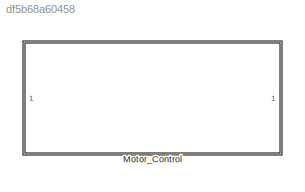
MODEL slx_df5b68a60458
KIND model
CONFIG AbsTol = auto
CONFIG EnableMultiTasking = on
CONFIG FixedStep = 0.02
CONFIG MaxStep = auto
CONFIG MinStep = auto
CONFIG RelTol = 1e-3
CONFIG SampleTimeConstraint = Unconstrained
CONFIG Solver = FixedStepAuto
CONFIG SolverName = FixedStepAuto
CONFIG StartTime = 0.0
CONFIG StopTime = 500
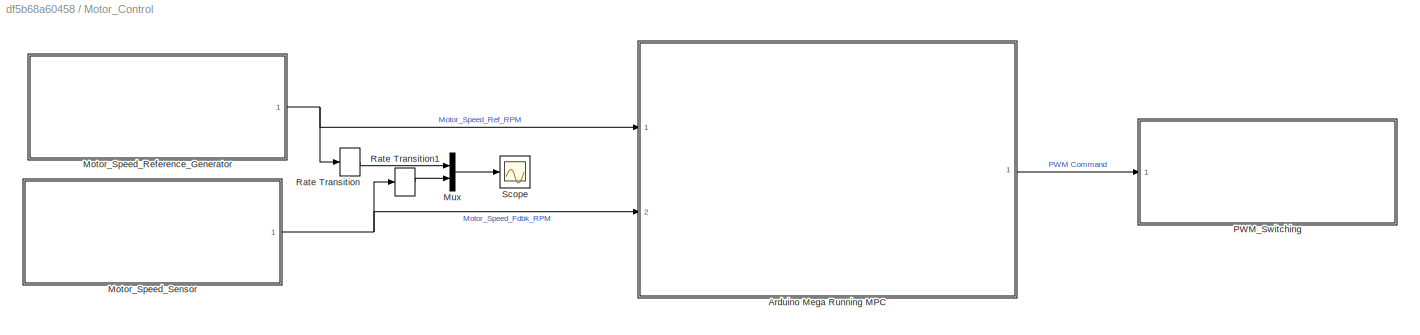
BLOCK [SubSystem] Motor_Control
  Ports = []
  RTWFcnName = Motor_Control
  RTWFcnNameOpts = User specified
  RTWFileName = motor_control_file
  RTWFileNameOpts = User specified
  RTWSystemCode = Nonreusable function
  RequestExecContextInheritance = off
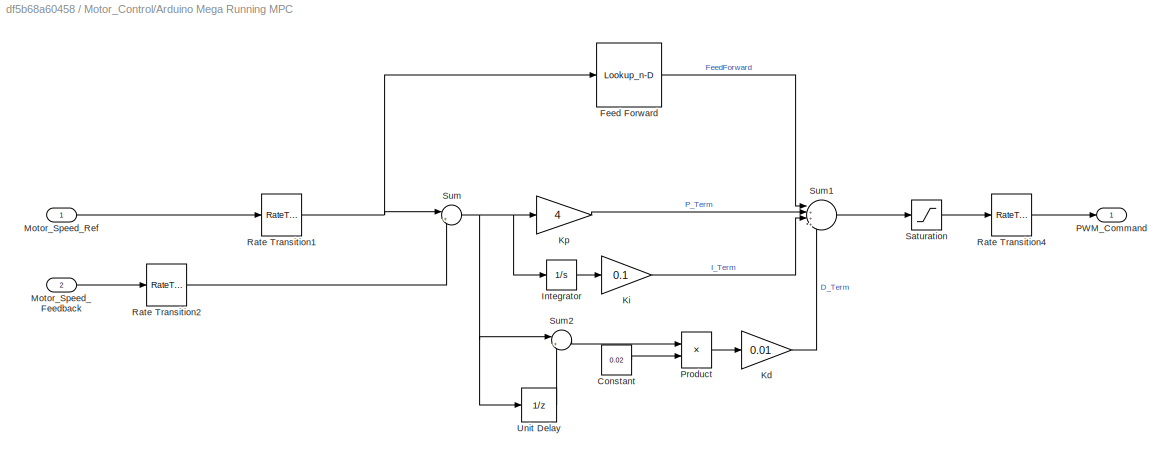
BLOCK [SubSystem] Motor_Control/Arduino Mega Running MPC
  Ports = [2, 1]
  RequestExecContextInheritance = off
BLOCK [Constant] Motor_Control/Arduino Mega Running MPC/Constant
  Value = 0.02
BLOCK [Lookup_n-D] Motor_Control/Arduino Mega Running MPC/Feed Forward
  BreakpointsForDimension1 = [57 149 225 273 303 327 338 354 360 375]
  ExtrapMethod = Clip
  InternalRulePriority = Speed
  NumberOfTableDimensions = 1
  Ports = [1, 1]
  RndMeth = Simplest
  Table = [25.5 	50.1 	76.5 	102 	127.5 	153 	178.5 	204 	229.5 	255 ]
BLOCK [Integrator] Motor_Control/Arduino Mega Running MPC/Integrator
  Ports = [1, 1]
BLOCK [Gain] Motor_Control/Arduino Mega Running MPC/Kd
  Gain = 0.01
  OutDataTypeStr = Inherit: Inherit via internal rule
  ParamDataTypeStr = Inherit: Inherit via internal rule
  SaturateOnIntegerOverflow = off
BLOCK [Gain] Motor_Control/Arduino Mega Running MPC/Ki
  Gain = 0.1
  OutDataTypeStr = Inherit: Inherit via internal rule
  ParamDataTypeStr = Inherit: Inherit via internal rule
  SaturateOnIntegerOverflow = off
BLOCK [Gain] Motor_Control/Arduino Mega Running MPC/Kp 
  Gain = 4
  OutDataTypeStr = Inherit: Inherit via internal rule
  ParamDataTypeStr = Inherit: Inherit via internal rule
  SaturateOnIntegerOverflow = off
BLOCK [Inport] Motor_Control/Arduino Mega Running MPC/Motor_Speed_Feedback
  IconDisplay = Port number
  Port = 2
BLOCK [Inport] Motor_Control/Arduino Mega Running MPC/Motor_Speed_Ref
  IconDisplay = Port number
BLOCK [Outport] Motor_Control/Arduino Mega Running MPC/PWM_Command
  IconDisplay = Port number
  VectorParamsAs1DForOutWhenUnconnected = off
BLOCK [Product] Motor_Control/Arduino Mega Running MPC/Product
  InputSameDT = off
  Inputs = */
  OutDataTypeStr = Inherit: Inherit via internal rule
  Ports = [2, 1]
  RndMeth = Floor
  SaturateOnIntegerOverflow = off
BLOCK [RateTransition] Motor_Control/Arduino Mega Running MPC/Rate Transition1
BLOCK [RateTransition] Motor_Control/Arduino Mega Running MPC/Rate Transition2
BLOCK [RateTransition] Motor_Control/Arduino Mega Running MPC/Rate Transition4
BLOCK [Saturate] Motor_Control/Arduino Mega Running MPC/Saturation
  InputPortMap = u0
  LowerLimit = 0
  Ports = [1, 1]
  UpperLimit = 255
BLOCK [Sum] Motor_Control/Arduino Mega Running MPC/Sum
  IconShape = round
  InputSameDT = off
  Inputs = |+-
  OutDataTypeStr = Inherit: Inherit via internal rule
  Ports = [2, 1]
  SaturateOnIntegerOverflow = off
BLOCK [Sum] Motor_Control/Arduino Mega Running MPC/Sum1
  IconShape = round
  InputSameDT = off
  Inputs = |++++
  OutDataTypeStr = Inherit: Inherit via internal rule
  Ports = [4, 1]
  SaturateOnIntegerOverflow = off
BLOCK [Sum] Motor_Control/Arduino Mega Running MPC/Sum2
  IconShape = round
  InputSameDT = off
  Inputs = |+-
  OutDataTypeStr = Inherit: Inherit via internal rule
  Ports = [2, 1]
  SaturateOnIntegerOverflow = off
BLOCK [UnitDelay] Motor_Control/Arduino Mega Running MPC/Unit Delay
  HasFrameUpgradeWarning = on
  SampleTime = -1
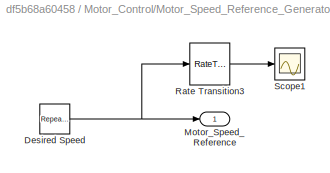
BLOCK [SubSystem] Motor_Control/Motor_Speed_Reference_Generator
  Ports = [0, 1]
  RequestExecContextInheritance = off
BLOCK [Reference] Motor_Control/Motor_Speed_Reference_Generator/Desired Speed  REF=simulink/Sources/Repeating
Sequence
Stair
  Ports = [0, 1]
  SourceBlock = simulink/Sources/Repeating\nSequence\nStair
  SourceProductBaseCode = SL
  SourceProductName = Simulink
  SourceType = Repeating Sequence Stair
BLOCK [Outport] Motor_Control/Motor_Speed_Reference_Generator/Motor_Speed_Reference
  IconDisplay = Port number
  VectorParamsAs1DForOutWhenUnconnected = off
BLOCK [RateTransition] Motor_Control/Motor_Speed_Reference_Generator/Rate Transition3
BLOCK [Scope] Motor_Control/Motor_Speed_Reference_Generator/Scope1
  Floating = off
  NumInputPorts = 1
  Ports = [1]
  ScopeSpecificationString = Simulink.scopes.TimeScopeBlockCfg('CurrentConfiguration', extmgr.ConfigurationSet(extmgr.Configuration('Core','General UI',true),extmgr.Configuration('Core','Source UI',true),extmgr.Configuration('Sources','WiredSimulink',true,'DataLoggingSaveFormat','Array','DataLoggingDecimation','1','DataLoggingDecimateData',true,'DataLogging',true,'DataLoggingVariableName','Motor_Speed_Reference','SampleTime',...<+1720ch>
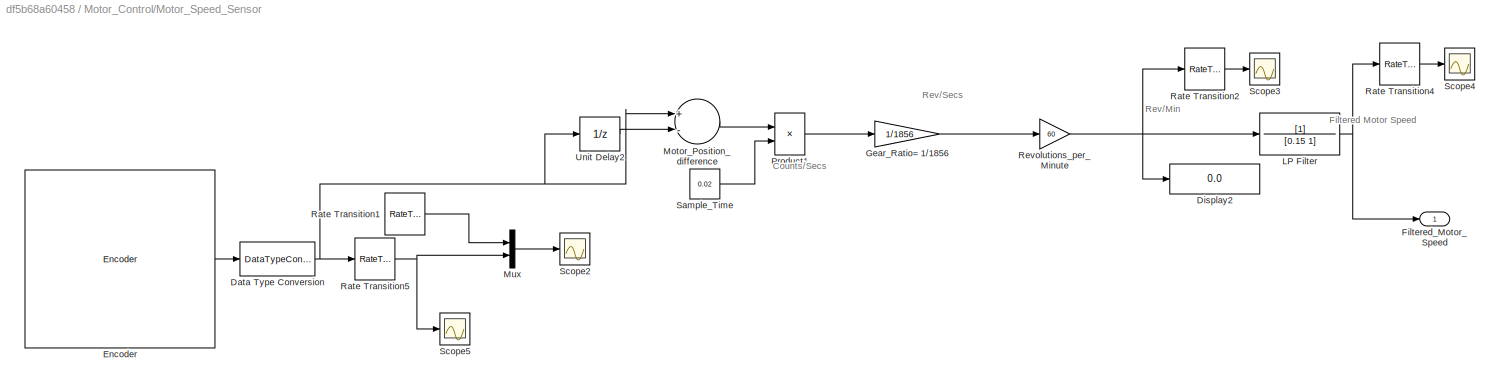
BLOCK [SubSystem] Motor_Control/Motor_Speed_Sensor
  Ports = [0, 1]
  RequestExecContextInheritance = off
BLOCK [DataTypeConversion] Motor_Control/Motor_Speed_Sensor/Data Type Conversion
  OutDataTypeStr = int16
  RndMeth = Floor
  SaturateOnIntegerOverflow = off
BLOCK [Display] Motor_Control/Motor_Speed_Sensor/Display2
  Decimation = 1
  Ports = [1]
BLOCK [Reference] Motor_Control/Motor_Speed_Sensor/Encoder  REF=RoboholicLib/Encoder
  Ports = [0, 1]
  SourceBlock = RoboholicLib/Encoder
  SourceProductName = Roboholic Maniacs Arduino Support Package
  SourceType = Encoder_Sim
BLOCK [Outport] Motor_Control/Motor_Speed_Sensor/Filtered_Motor_Speed
  IconDisplay = Port number
  VectorParamsAs1DForOutWhenUnconnected = off
BLOCK [Gain] Motor_Control/Motor_Speed_Sensor/Gear_Ratio= 1//1856
  Gain = 1/1856
  OutDataTypeStr = Inherit: Inherit via internal rule
  ParamDataTypeStr = Inherit: Inherit via internal rule
  SaturateOnIntegerOverflow = off
BLOCK [TransferFcn] Motor_Control/Motor_Speed_Sensor/LP Filter
  Denominator = [0.15 1]
BLOCK [Sum] Motor_Control/Motor_Speed_Sensor/Motor_Position_difference
  InputSameDT = off
  Inputs = +-
  OutDataTypeStr = Inherit: Inherit via internal rule
  Ports = [2, 1]
  SaturateOnIntegerOverflow = off
BLOCK [Mux] Motor_Control/Motor_Speed_Sensor/Mux
  Commented = on
  DisplayOption = bar
  Inputs = 2
  Ports = [2, 1]
BLOCK [Product] Motor_Control/Motor_Speed_Sensor/Product1
  InputSameDT = off
  Inputs = */
  OutDataTypeStr = Inherit: Inherit via internal rule
  Ports = [2, 1]
  RndMeth = Floor
  SaturateOnIntegerOverflow = off
BLOCK [RateTransition] Motor_Control/Motor_Speed_Sensor/Rate Transition1
  Commented = on
BLOCK [RateTransition] Motor_Control/Motor_Speed_Sensor/Rate Transition2
BLOCK [RateTransition] Motor_Control/Motor_Speed_Sensor/Rate Transition4
BLOCK [RateTransition] Motor_Control/Motor_Speed_Sensor/Rate Transition5
  Commented = on
BLOCK [Gain] Motor_Control/Motor_Speed_Sensor/Revolutions_per_Minute
  Gain = 60
  OutDataTypeStr = Inherit: Inherit via internal rule
  ParamDataTypeStr = Inherit: Inherit via internal rule
  SaturateOnIntegerOverflow = off
BLOCK [Constant] Motor_Control/Motor_Speed_Sensor/Sample_Time
  OutDataTypeStr = double
  Value = 0.02
BLOCK [Scope] Motor_Control/Motor_Speed_Sensor/Scope2
  Commented = on
  Floating = off
  NumInputPorts = 1
  Ports = [1]
  ScopeSpecificationString = Simulink.scopes.TimeScopeBlockCfg('CurrentConfiguration', extmgr.ConfigurationSet(extmgr.Configuration('Core','General UI',true),extmgr.Configuration('Core','Source UI',true),extmgr.Configuration('Sources','WiredSimulink',true,'DataLoggingSaveFormat','Array','DataLoggingDecimation','1','DataLoggingDecimateData',true,'DataLogging',true,'DataLoggingVariableName','ScopeData1','SampleTime','0.2'),extm...<+1749ch>
BLOCK [Scope] Motor_Control/Motor_Speed_Sensor/Scope3
  Commented = on
  Floating = off
  NumInputPorts = 1
  Ports = [1]
  ScopeSpecificationString = Simulink.scopes.TimeScopeBlockCfg('CurrentConfiguration', extmgr.ConfigurationSet(extmgr.Configuration('Core','General UI',true),extmgr.Configuration('Core','Source UI',true),extmgr.Configuration('Sources','WiredSimulink',true,'DataLoggingSaveFormat','Array','DataLoggingDecimation','1','DataLoggingDecimateData',true,'DataLogging',true,'DataLoggingVariableName','Motor_Speed_RPM_Unfiltered','SampleT...<+1732ch>
BLOCK [Scope] Motor_Control/Motor_Speed_Sensor/Scope4
  Commented = on
  Floating = off
  NumInputPorts = 1
  Ports = [1]
  ScopeSpecificationString = Simulink.scopes.TimeScopeBlockCfg('CurrentConfiguration', extmgr.ConfigurationSet(extmgr.Configuration('Core','General UI',true),extmgr.Configuration('Core','Source UI',true),extmgr.Configuration('Sources','WiredSimulink',true,'DataLoggingSaveFormat','Array','DataLoggingDecimation','1','DataLoggingDecimateData',true,'DataLogging',true,'DataLoggingVariableName','Motor_Speed_RPM_Filtered','SampleTim...<+1738ch>
BLOCK [Scope] Motor_Control/Motor_Speed_Sensor/Scope5
  Commented = on
  Floating = off
  NumInputPorts = 1
  Ports = [1]
  ScopeSpecificationString = Simulink.scopes.TimeScopeBlockCfg('CurrentConfiguration', extmgr.ConfigurationSet(extmgr.Configuration('Core','General UI',true),extmgr.Configuration('Core','Source UI',true),extmgr.Configuration('Sources','WiredSimulink',true,'DataLoggingSaveFormat','StructureWithTime','DataLoggingDecimation','1','DataLoggingDecimateData',true,'DataLogging',true,'DataLoggingVariableName','New_Encoder_Output_Count...<+1767ch>
BLOCK [UnitDelay] Motor_Control/Motor_Speed_Sensor/Unit Delay2
  HasFrameUpgradeWarning = on
  SampleTime = -1
BLOCK [Mux] Motor_Control/Mux
  DisplayOption = bar
  Inputs = 2
  Ports = [2, 1]
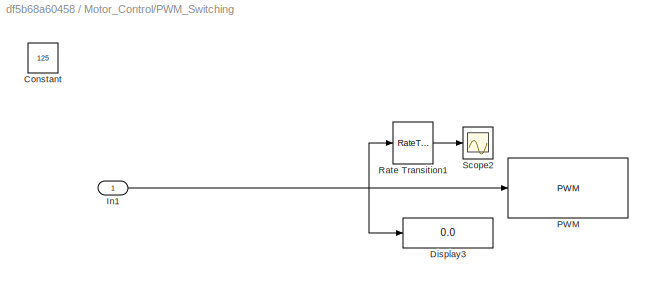
BLOCK [SubSystem] Motor_Control/PWM_Switching
  Ports = [1]
  RequestExecContextInheritance = off
BLOCK [Constant] Motor_Control/PWM_Switching/Constant
  Value = 125
BLOCK [Display] Motor_Control/PWM_Switching/Display3
  Decimation = 1
  Ports = [1]
BLOCK [Inport] Motor_Control/PWM_Switching/In1
  IconDisplay = Port number
BLOCK [Reference] Motor_Control/PWM_Switching/PWM  REF=arduinolib/PWM
  Ports = [1]
  SourceBlock = arduinolib/PWM
  SourceProductBaseCode = ARDUINO
  SourceProductName = Simulink Support Package for Arduino Hardware
  SourceType = Arduino PWM
BLOCK [RateTransition] Motor_Control/PWM_Switching/Rate Transition1
BLOCK [Scope] Motor_Control/PWM_Switching/Scope2
  Floating = off
  NumInputPorts = 1
  Ports = [1]
  ScopeSpecificationString = Simulink.scopes.TimeScopeBlockCfg('CurrentConfiguration', extmgr.ConfigurationSet(extmgr.Configuration('Core','General UI',true),extmgr.Configuration('Core','Source UI',true),extmgr.Configuration('Sources','WiredSimulink',true,'DataLoggingSaveFormat','Array','DataLoggingDecimation','1','DataLoggingDecimateData',true,'SampleTime','0.2','DataLoggingVariableName','PWM_Input'),extmgr.Configuration('Vi...<+1702ch>
BLOCK [RateTransition] Motor_Control/Rate Transition
BLOCK [RateTransition] Motor_Control/Rate Transition1
BLOCK [Scope] Motor_Control/Scope
  Floating = off
  NumInputPorts = 1
  Ports = [1]
  ScopeSpecificationString = Simulink.scopes.TimeScopeBlockCfg('CurrentConfiguration', extmgr.ConfigurationSet(extmgr.Configuration('Core','General UI',true),extmgr.Configuration('Core','Source UI',true),extmgr.Configuration('Sources','WiredSimulink',true,'DataLoggingVariableName','ScopeData1'),extmgr.Configuration('Visuals','Time Domain',true,'SerializedDisplays',{struct('MinYLimReal','-25.25172','MaxYLimReal','227.26548','Y...<+1455ch>
ANNOTATION Motor_Control/Motor_Speed_Sensor: Counts/Secs
ANNOTATION Motor_Control/Motor_Speed_Sensor: Filtered Motor Speed
ANNOTATION Motor_Control/Motor_Speed_Sensor: Rev/Min
ANNOTATION Motor_Control/Motor_Speed_Sensor: Rev/Secs
LINE Motor_Control/Arduino Mega Running MPC/Constant:1 -> Motor_Control/Arduino Mega Running MPC/Product:2
LINE Motor_Control/Arduino Mega Running MPC/Feed Forward:1 -> Motor_Control/Arduino Mega Running MPC/Sum1:1
LINE Motor_Control/Arduino Mega Running MPC/Integrator:1 -> Motor_Control/Arduino Mega Running MPC/Ki:1
LINE Motor_Control/Arduino Mega Running MPC/Kd:1 -> Motor_Control/Arduino Mega Running MPC/Sum1:4
LINE Motor_Control/Arduino Mega Running MPC/Ki:1 -> Motor_Control/Arduino Mega Running MPC/Sum1:3
LINE Motor_Control/Arduino Mega Running MPC/Kp :1 -> Motor_Control/Arduino Mega Running MPC/Sum1:2
LINE Motor_Control/Arduino Mega Running MPC/Motor_Speed_Feedback:1 -> Motor_Control/Arduino Mega Running MPC/Rate Transition2:1
LINE Motor_Control/Arduino Mega Running MPC/Motor_Speed_Ref:1 -> Motor_Control/Arduino Mega Running MPC/Rate Transition1:1
LINE Motor_Control/Arduino Mega Running MPC/Product:1 -> Motor_Control/Arduino Mega Running MPC/Kd:1
NET Motor_Control/Arduino Mega Running MPC/Rate Transition1:1 -> Motor_Control/Arduino Mega Running MPC/Feed Forward:1, Motor_Control/Arduino Mega Running MPC/Sum:1
LINE Motor_Control/Arduino Mega Running MPC/Rate Transition2:1 -> Motor_Control/Arduino Mega Running MPC/Sum:2
LINE Motor_Control/Arduino Mega Running MPC/Rate Transition4:1 -> Motor_Control/Arduino Mega Running MPC/PWM_Command:1
LINE Motor_Control/Arduino Mega Running MPC/Saturation:1 -> Motor_Control/Arduino Mega Running MPC/Rate Transition4:1
LINE Motor_Control/Arduino Mega Running MPC/Sum1:1 -> Motor_Control/Arduino Mega Running MPC/Saturation:1
LINE Motor_Control/Arduino Mega Running MPC/Sum2:1 -> Motor_Control/Arduino Mega Running MPC/Product:1
NET Motor_Control/Arduino Mega Running MPC/Sum:1 -> Motor_Control/Arduino Mega Running MPC/Integrator:1, Motor_Control/Arduino Mega Running MPC/Kp :1, Motor_Control/Arduino Mega Running MPC/Sum2:1, Motor_Control/Arduino Mega Running MPC/Unit Delay:1
LINE Motor_Control/Arduino Mega Running MPC/Unit Delay:1 -> Motor_Control/Arduino Mega Running MPC/Sum2:2
LINE Motor_Control/Arduino Mega Running MPC:1 -> Motor_Control/PWM_Switching:1
NET Motor_Control/Motor_Speed_Reference_Generator/Desired Speed:1 -> Motor_Control/Motor_Speed_Reference_Generator/Motor_Speed_Reference:1, Motor_Control/Motor_Speed_Reference_Generator/Rate Transition3:1
LINE Motor_Control/Motor_Speed_Reference_Generator/Rate Transition3:1 -> Motor_Control/Motor_Speed_Reference_Generator/Scope1:1
NET Motor_Control/Motor_Speed_Reference_Generator:1 -> Motor_Control/Arduino Mega Running MPC:1, Motor_Control/Rate Transition:1
NET Motor_Control/Motor_Speed_Sensor/Data Type Conversion:1 -> Motor_Control/Motor_Speed_Sensor/Motor_Position_difference:1, Motor_Control/Motor_Speed_Sensor/Rate Transition5:1, Motor_Control/Motor_Speed_Sensor/Unit Delay2:1
LINE Motor_Control/Motor_Speed_Sensor/Encoder:1 -> Motor_Control/Motor_Speed_Sensor/Data Type Conversion:1
LINE Motor_Control/Motor_Speed_Sensor/Gear_Ratio= 1//1856:1 -> Motor_Control/Motor_Speed_Sensor/Revolutions_per_Minute:1
NET Motor_Control/Motor_Speed_Sensor/LP Filter:1 -> Motor_Control/Motor_Speed_Sensor/Filtered_Motor_Speed:1, Motor_Control/Motor_Speed_Sensor/Rate Transition4:1
LINE Motor_Control/Motor_Speed_Sensor/Motor_Position_difference:1 -> Motor_Control/Motor_Speed_Sensor/Product1:1
LINE Motor_Control/Motor_Speed_Sensor/Mux:1 -> Motor_Control/Motor_Speed_Sensor/Scope2:1
LINE Motor_Control/Motor_Speed_Sensor/Product1:1 -> Motor_Control/Motor_Speed_Sensor/Gear_Ratio= 1//1856:1
LINE Motor_Control/Motor_Speed_Sensor/Rate Transition1:1 -> Motor_Control/Motor_Speed_Sensor/Mux:1
LINE Motor_Control/Motor_Speed_Sensor/Rate Transition2:1 -> Motor_Control/Motor_Speed_Sensor/Scope3:1
LINE Motor_Control/Motor_Speed_Sensor/Rate Transition4:1 -> Motor_Control/Motor_Speed_Sensor/Scope4:1
NET Motor_Control/Motor_Speed_Sensor/Rate Transition5:1 -> Motor_Control/Motor_Speed_Sensor/Mux:2, Motor_Control/Motor_Speed_Sensor/Scope5:1
NET Motor_Control/Motor_Speed_Sensor/Revolutions_per_Minute:1 -> Motor_Control/Motor_Speed_Sensor/Display2:1, Motor_Control/Motor_Speed_Sensor/LP Filter:1, Motor_Control/Motor_Speed_Sensor/Rate Transition2:1
LINE Motor_Control/Motor_Speed_Sensor/Sample_Time:1 -> Motor_Control/Motor_Speed_Sensor/Product1:2
LINE Motor_Control/Motor_Speed_Sensor/Unit Delay2:1 -> Motor_Control/Motor_Speed_Sensor/Motor_Position_difference:2
NET Motor_Control/Motor_Speed_Sensor:1 -> Motor_Control/Arduino Mega Running MPC:2, Motor_Control/Rate Transition1:1
LINE Motor_Control/Mux:1 -> Motor_Control/Scope:1
NET Motor_Control/PWM_Switching/In1:1 -> Motor_Control/PWM_Switching/Display3:1, Motor_Control/PWM_Switching/PWM:1, Motor_Control/PWM_Switching/Rate Transition1:1
LINE Motor_Control/PWM_Switching/Rate Transition1:1 -> Motor_Control/PWM_Switching/Scope2:1
LINE Motor_Control/Rate Transition1:1 -> Motor_Control/Mux:2
LINE Motor_Control/Rate Transition:1 -> Motor_Control/Mux:1
note: NET lines group one-source signal fan-out (src -> all destinations, sorted); 1:1 wires keep LINE
